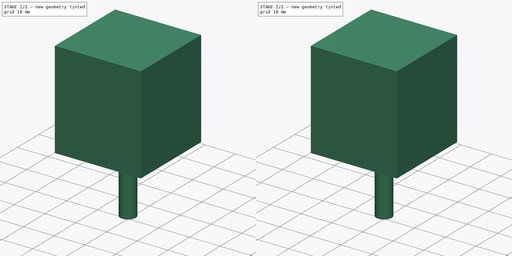
[diagram: build sequence overview — one tinted view per stage of 2, left to right]
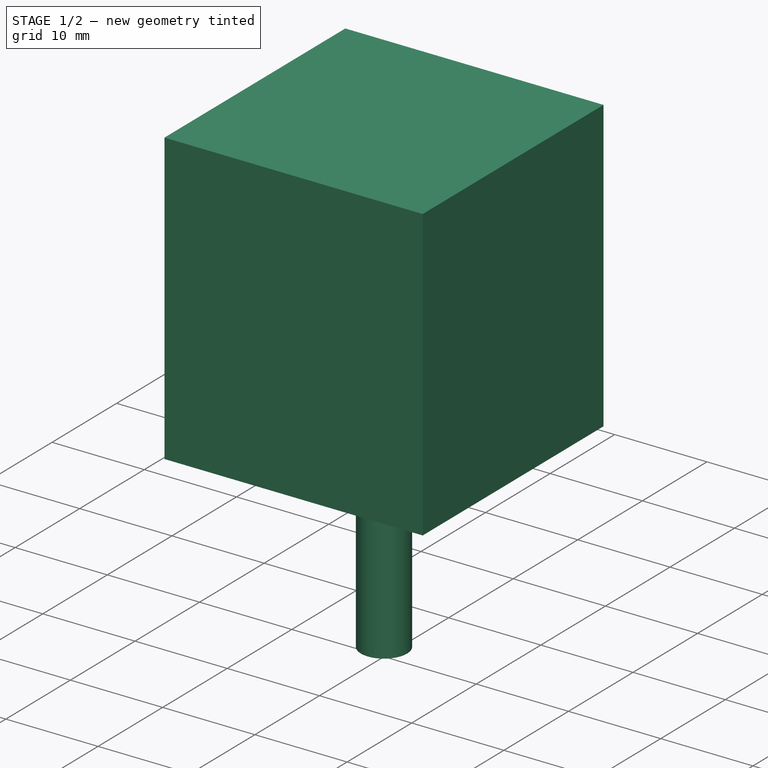
[diagram: stage 1 of 2 — iso view after this stage's code; geometry added in this stage tinted green]
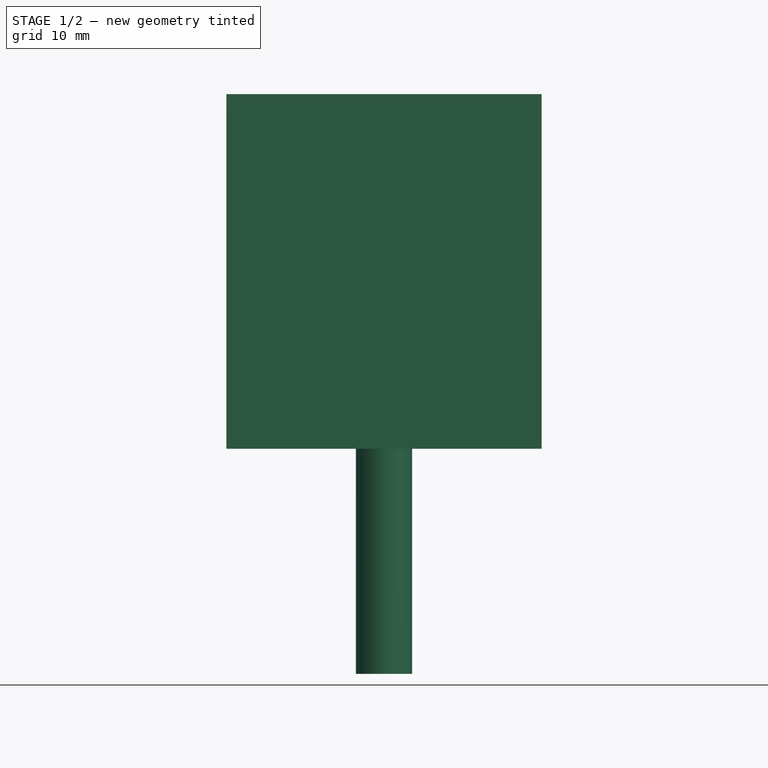
[diagram: stage 1 of 2 — front view after this stage's code; geometry added in this stage tinted green]
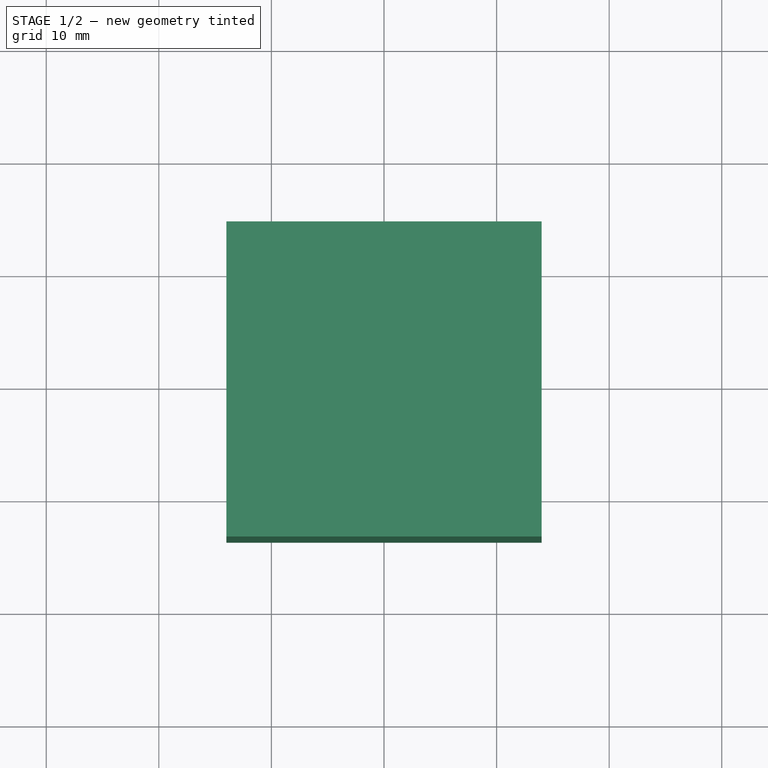
[diagram: stage 1 of 2 — top view after this stage's code; geometry added in this stage tinted green]
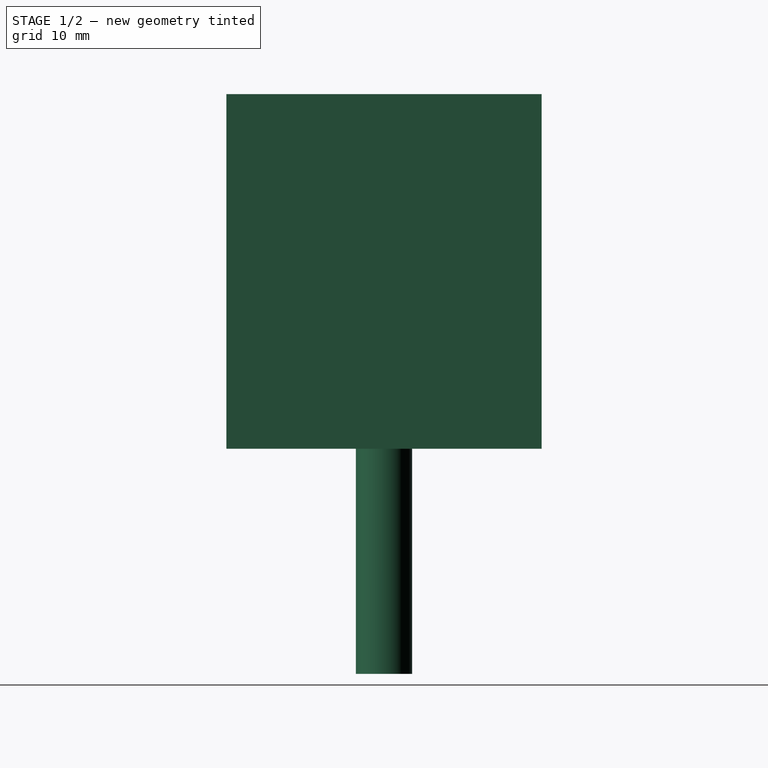
[diagram: stage 1 of 2 — right view after this stage's code; geometry added in this stage tinted green]
FCSTD DOCUMENT  (FreeCAD 0.18R16110 (Git))
Label: Step_Motor
License: All rights reserved
LicenseURL: http://en.wikipedia.org/wiki/All_rights_reserved
objects: Sketcher::SketchObject×2, PartDesign::Pad×2, PartDesign::Body×2, Spreadsheet::Sheet×1, PartDesign::Boolean×1, App::Part×1
note: 9 computed .brp shape members not serialized (recipe doc carries the construction recipe); baked Part::Feature solids carry a one-line shape summary decoded from their .brp

FEATURE [Sketcher::SketchObject] Sketch022
  MapMode = 5
  Support = -> [XY_Plane031]
  sketch-geometry (3):
    g0: LineSegment [constr] StartX=6.2482e-08 StartY=1.05862e-07 StartZ=0 EndX=1.01537e-07 EndY=1.05862e-07 EndZ=0
    g1: LineSegment [constr] StartX=1.01537e-07 StartY=1.05862e-07 StartZ=0 EndX=1.01537e-07 EndY=1.72031e-07 EndZ=0
    g2: Circle CenterX=1.01537e-07 CenterY=1.72031e-07 CenterZ=0 NormalX=0 NormalY=0 NormalZ=1 AngleXU=0 Radius=2.5
  constraints (8):
    c: Coincident(g0,g-1)
    c: Horizontal(g0)
    c: DistanceX(g0,g0) = 0
    c: Coincident(g1,g0)
    c: Vertical(g1)
    c: DistanceY(g1,g1) = 0
    c: Coincident(g2,g1)
    c: Radius(g2) = 2.5
FEATURE [Sketcher::SketchObject] Sketch021
  MapMode = 5
  Support = -> [XY_Plane030]
  sketch-geometry (8):
    g0: LineSegment [constr] StartX=-3.71582e-06 StartY=3.71582e-06 StartZ=0 EndX=-7.04163e-06 EndY=3.71582e-06 EndZ=0
    g1: LineSegment [constr] StartX=-7.04163e-06 StartY=3.71582e-06 StartZ=0 EndX=-7.04163e-06 EndY=7.04163e-06 EndZ=0
    g2: LineSegment [constr] StartX=-7.04163e-06 StartY=7.04163e-06 StartZ=0 EndX=-14 EndY=7.04163e-06 EndZ=0
    g3: LineSegment [constr] StartX=-14 StartY=7.04163e-06 StartZ=0 EndX=-14 EndY=14 EndZ=0
    g4: LineSegment StartX=-14 StartY=14 StartZ=0 EndX=-14 EndY=-14 EndZ=0
    g5: LineSegment StartX=-14 StartY=-14 StartZ=0 EndX=14 EndY=-14 EndZ=0
    g6: LineSegment StartX=14 StartY=-14 StartZ=0 EndX=14 EndY=14 EndZ=0
    g7: LineSegment StartX=14 StartY=14 StartZ=0 EndX=-14 EndY=14 EndZ=0
  constraints (23):
    c: Coincident(g0,g-1)
    c: Horizontal(g0)
    c: Coincident(g1,g0)
    c: Vertical(g1)
    c: Horizontal(g2)
    c: Vertical(g3)
    c: DistanceY(g1,g1) = 0
    c: Coincident(g2,g1)
    c: Coincident(g3,g2)
    c: Coincident(g4,g3)
    c: Vertical(g4)
    c: Coincident(g5,g4)
    c: Horizontal(g5)
    c: Coincident(g6,g5)
    c: Vertical(g6)
    c: Coincident(g7,g6)
    c: Horizontal(g7)
    c: Coincident(g7,g3)
    c: DistanceY(g3,g3) = 14
    c: DistanceY(g4,g4) = 28
    c: DistanceX(g7,g7) = 28
    c: DistanceX(g2,g2) = 14
    c: DistanceX(g0,g0) = 0
FEATURE [PartDesign::Pad] Pad019
  Length = 31.5
  Length2 = 100
  Profile = -> Sketch021
  Type = 0
FEATURE [PartDesign::Pad] Pad020
  Length = 20
  Length2 = 100
  Profile = -> Sketch022
  Reversed = true
  Type = 0
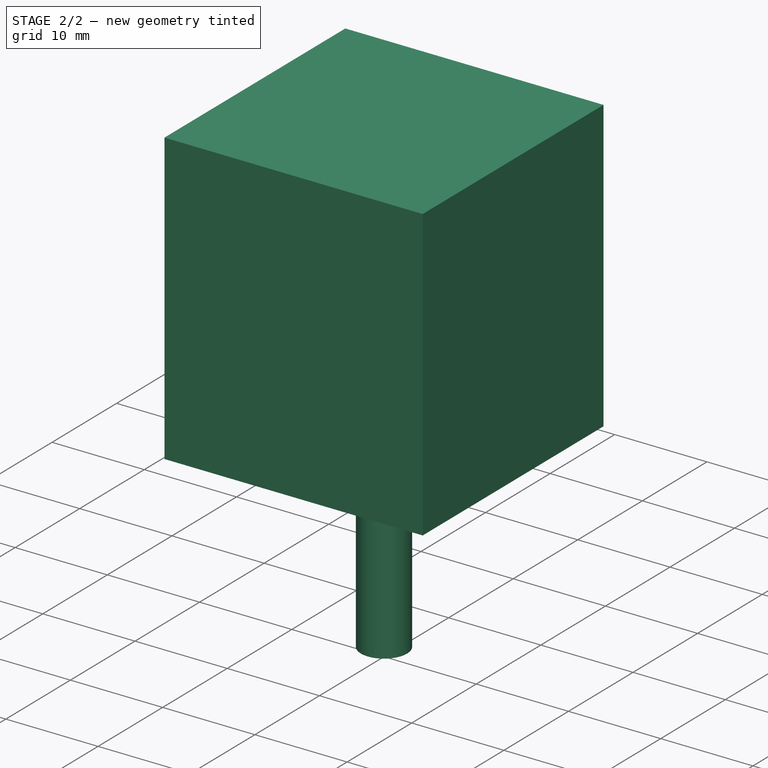
[diagram: stage 2 of 2 — iso view after this stage's code; geometry added in this stage tinted green]
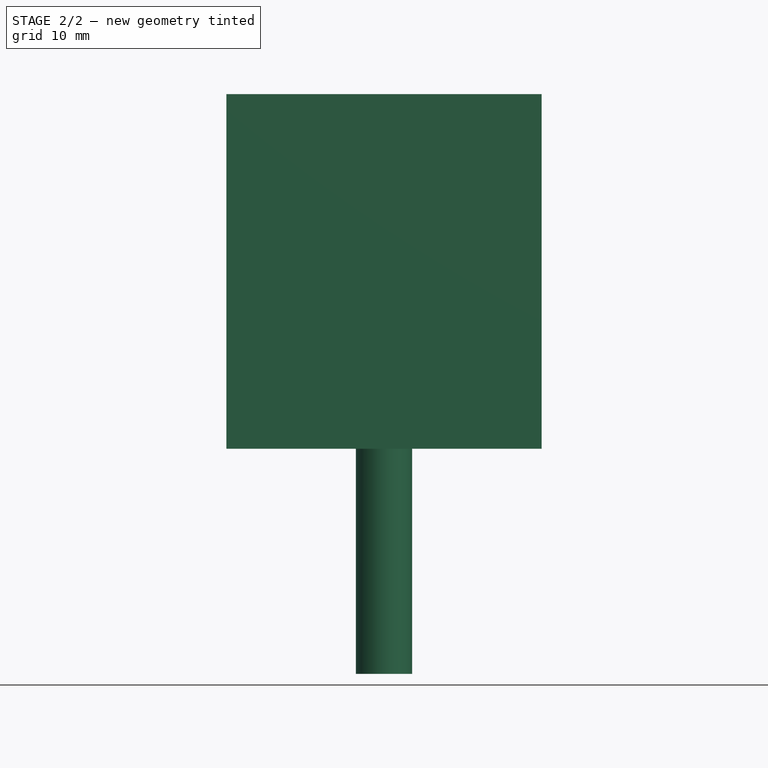
[diagram: stage 2 of 2 — front view after this stage's code; geometry added in this stage tinted green]
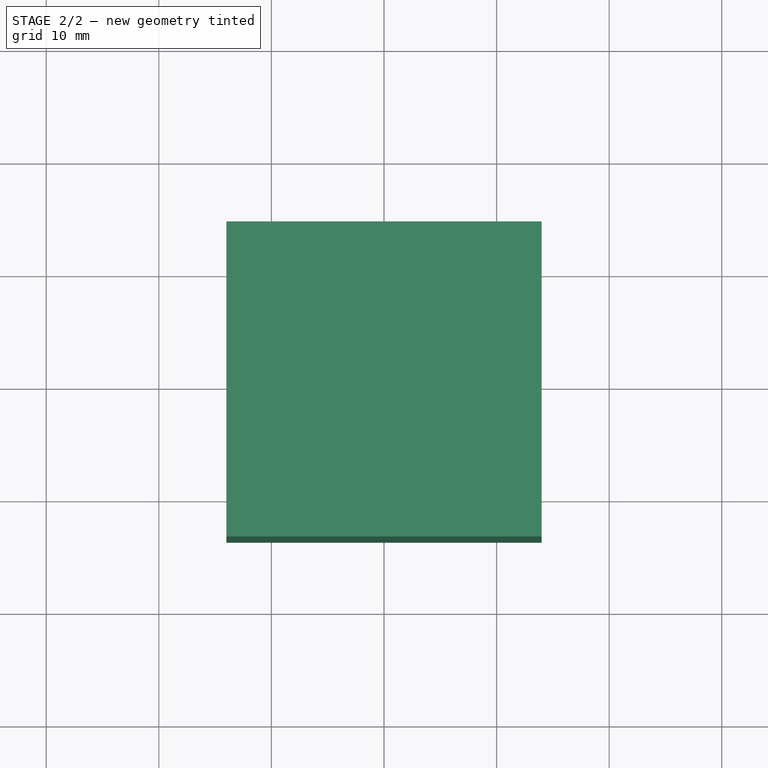
[diagram: stage 2 of 2 — top view after this stage's code; geometry added in this stage tinted green]
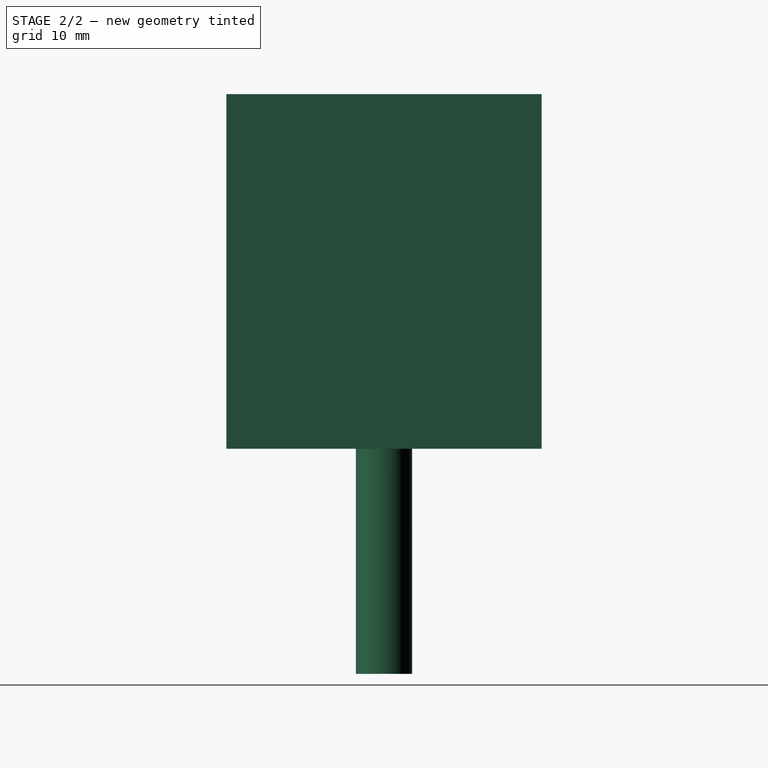
[diagram: stage 2 of 2 — right view after this stage's code; geometry added in this stage tinted green]
FEATURE [Spreadsheet::Sheet] Spreadsheet
  cells = A1=Modul; B1(modul)=0.8; D1=tolerance; E1(tolerance)=0.2; G1=tolerance gear; H1(tolerance_gear)=0; A3=Zahnstange; D3=Zahnrad_1; G3=Zahnrad_2; J3=Ritzel; M3=Stepper; P3=Casing; A4=ra; B4(z_ra)=11; D4=#teeth; E4(z1_teeth)=16; G4=#teeth; H4(z2_teeth)=54; J4=#teeth; K4(ritzel_teeth)=16; M4=axis d; N4(stepper_daxis)=5; P4=gear casing sgear; Q4(casing_sgear)=2; A5=di; B5(z_ri)=8; D5=shift; E5(z1_shift)=0.2; G5=shift; H5(z2_shift)=0; J5=shift; K5(ritzel_shift)=0.3; M5=shaft l; N5(stepper_lshaft)=18; P5=rack casing srack; Q5(casing_srack)=2; A6=l; B6(z_l)==casing_ymax - casing_ymin + casing_scase; D6=pitch d; E6(z1_dpi)==modul * z1_teeth; G6=pitch d; H6(z2_dpi)==modul * z2_teeth; J6=pitch d; K6(ritzel_dpi)==modul * ritzel_teeth; M6=outside  sa; N6(stepper_sa)=28; P6=casing scase; Q6(casing_scase)=5; D7=outside d; E7(z1_da)==z1_dpi + 2 * (1 + z1_shift) * modul; G7=outside d; H7(z2_da)==z2_dpi + 2 * (1 + z2_shift) * modul; J7=outside d; K7(ritzel_da)==ritzel_dpi + 2 * (1 + ritzel_shift) * modul; M7=mount screw s; N7(stepper_sscrew)=23; P7=casing ssup; Q7(casing_ssup)=5; A8=rack height; B8(z_h)==z_th; D8=center distance; E8(z1_dc)==z1_dpi / 2 + z1_shift * modul + tolerance_gear; G8=center distance; H8(z2_dc)==z2_dpi / 2 + z2_shift * modul + tolerance_gear; J8=center distace; K8(ritzel_dc)==ritzel_dpi / 2 + ritzel_shift * modul + tolerance_gear; M8=mount d; N8(stepper_dmount)=22; P8=überlappung sjoin; Q8(casing_sjoin)=0.9; A9=rack thickness; B9(z_th)==2 * z_ra + 2; M9=mount heigth; N9(stepper_hmount)=2; A10=rack teeth width; B10(z_w)=8; D10=y Shift; E10(z1_yshift)=8; G10=height; H10(z2_h)=8; J10=angle z1; K10(ritzel_angle)=-65; M10=mount dscrew; N10(stepper_dscrew)=2.5; P10=casing y_min; Q10(casing_ymin)==-(Spreadsheet.z2_da / 2 + Spreadsheet.casing_scase + Spreadsheet.casing_sgear - Spreadsheet.z1_yshift - casing_sjoin + Spreadsheet.tolerance) * 0 + Spreadsheet.ritzel_ypos - stepper_sa / 2 - casing_scase; A11=#teeth; B11(z_teeth)=45; D11=height; E11(z1_height)==Spreadsheet.z_w * 3 / 4 + Spreadsheet.z2_dr + Spreadsheet.z2_h + Spreadsheet.z_ra; G11=distance rack; H11(z2_dr)=3; P11=casing x_min; Q11(casing_xmin)==-(Spreadsheet.z_ra * cos(asin(Spreadsheet.z_w / 2 / Spreadsheet.z_ra)) - Spreadsheet.modul + Spreadsheet.z_ra + Spreadsheet.casing_srack + Spreadsheet.casing_scase - Spreadsheet.casing_sjoin); D12=axis r; E12(z1_daxis)=2.5; G12=axis r; J12=x_pos; K12(ritzel_xpos)==Spreadsheet.z1_dc + cos(Spreadsheet.ritzel_angle) * (Spreadsheet.z2_dc + Spreadsheet.ritzel_dc); P12=casing z_min; Q12(casing_zmin)==-(Spreadsheet.z2_dr + Spreadsheet.z2_h - (Spreadsheet.z_h / 2 - Spreadsheet.z_ra) + Spreadsheet.tolerance) * 0 - 20.5; J13=y_pos; K13(ritzel_ypos)==Spreadsheet.z1_yshift + sin(Spreadsheet.ritzel_angle) * (Spreadsheet.z2_dc + Spreadsheet.ritzel_dc); G14=z_pos; H14(z2_zpos)==-(Spreadsheet.z2_dr + Spreadsheet.z2_h - (Spreadsheet.z_h / 2 - Spreadsheet.z_ra)); P14=casing z_max; Q14(casing_zmax)==(2 * Spreadsheet.casing_srack + Spreadsheet.z_th - Spreadsheet.casing_sjoin) * 0 + 44.5; G15=winkel 1; H15(z2_w1)==165°; P15=casing x_max; Q15(casing_xmax)==Spreadsheet.ritzel_xpos + stepper_sa / 2 + casing_scase + 2; A16=65; B16==-A16 / 2; C16==casing_xmax - casing_xmin - tolerance - casing_scase; G16=winkel 2; H16(z2_w2)==45°; P16=casing y_max; Q16(casing_ymax)==(Spreadsheet.ritzel_ypos + stepper_sa / 2 + 2) * 0 + 31; A17=8; B17==B16 + A18; C17==B17 ^ A20 * A19; G17=winkel 3; H17(z2_w3)==-49°; A18==A16 / A17; B18==B17 + A18; C18==B18 ^ A20 * A19; G18=winkel 4; H18(z2_w4)==-138°; A19==C16 / B16 ^ A20; B19==B18 + A18; C19==B19 ^ A20 * A19; A20=4; B20==B19 + A18; C20==B20 ^ A20 * A19; B21==B20 + A18; C21==B21 ^ A20 * A19; B22==B21 + A18; C22==B22 ^ A20 * A19; B23==B22 + A18; C23==B23 ^ A20 * A19; B24==B23 + A18; C24==B24 ^ A20 * A19
FEATURE [PartDesign::Body] Body026
  Group = -> [Sketch022,Pad020]
  Origin = -> Origin031
  Tip = -> Pad020
FEATURE [PartDesign::Boolean] Boolean014
  BaseFeature = -> Pad019
  Group = -> [Body026]
  Type = 0
FEATURE [PartDesign::Body] Body025  label="Motor"
  Group = -> [Sketch021,Pad019,Boolean014]
  Origin = -> Origin030
  Placement = pos=(0,0,20) rot=(0,0,1;0rad)
  Tip = -> Boolean014
  expr: Placement.Base.z = 20
FEATURE [App::Part] Part003  label="Step_Motor"
  Group = -> [Body025]
  License = CC BY 3.0
  LicenseURL = http://creativecommons.org/licenses/by/3.0/
  Origin = -> Origin029
  Placement = pos=(18.4947,-17.5941,-10) rot=(0,0,1;0rad)
  expr: Placement.Base.z = -(Spreadsheet.z2_dr + Spreadsheet.z2_h - (Spreadsheet.z_h / 2 - Spreadsheet.z_ra))
  expr: Placement.Base.y = Spreadsheet.ritzel_ypos
  expr: Placement.Base.x = Spreadsheet.ritzel_xpos
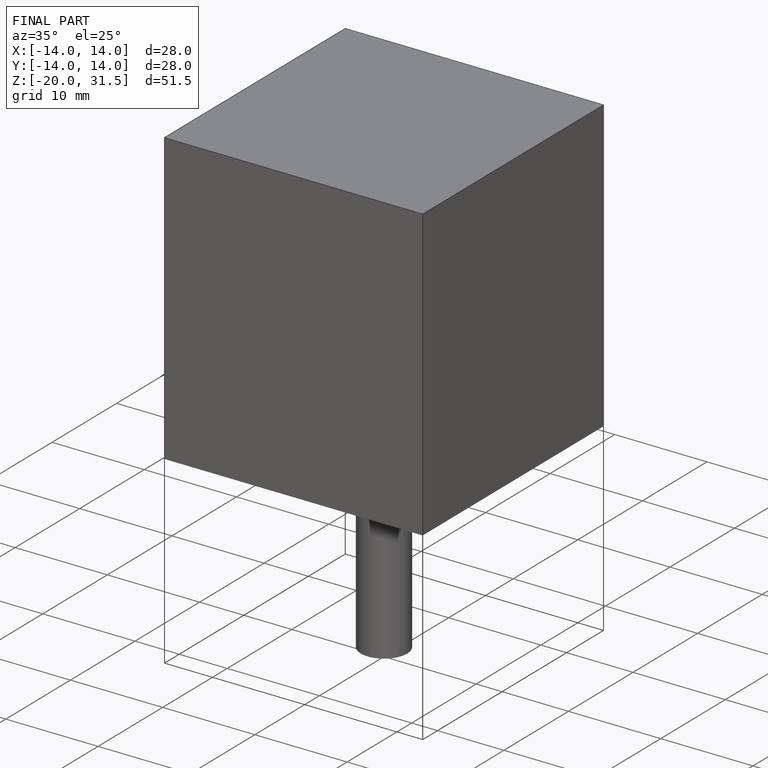
[diagram: finished part — iso view with bounding-box wireframe]
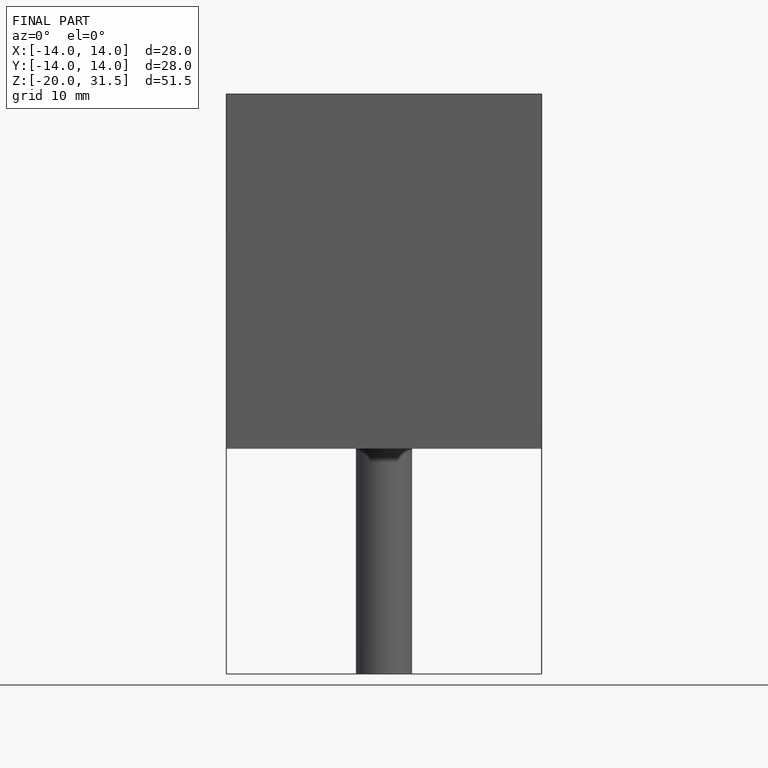
[diagram: finished part — front view with bounding-box wireframe]
